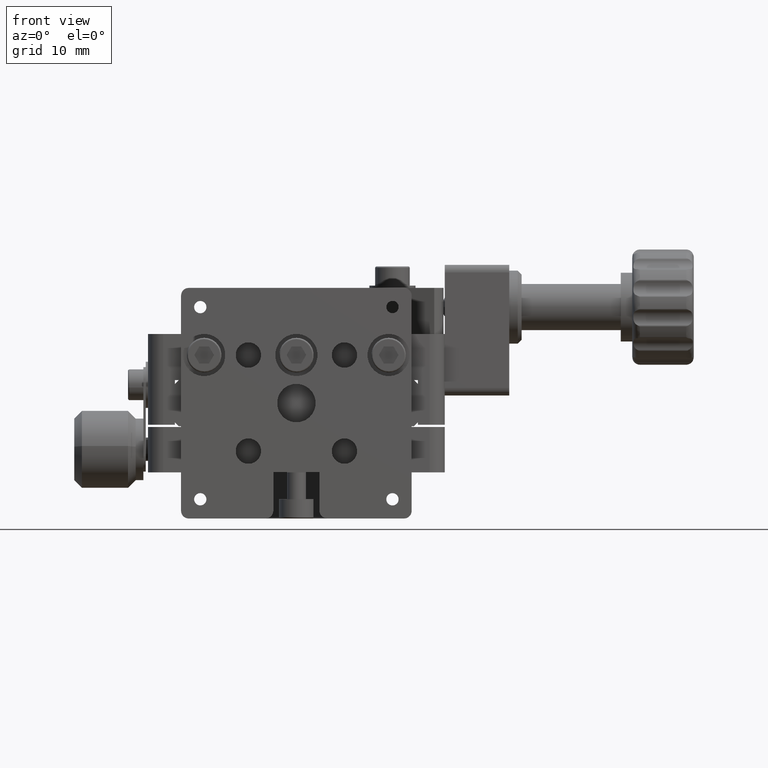
[diagram: clean part render]
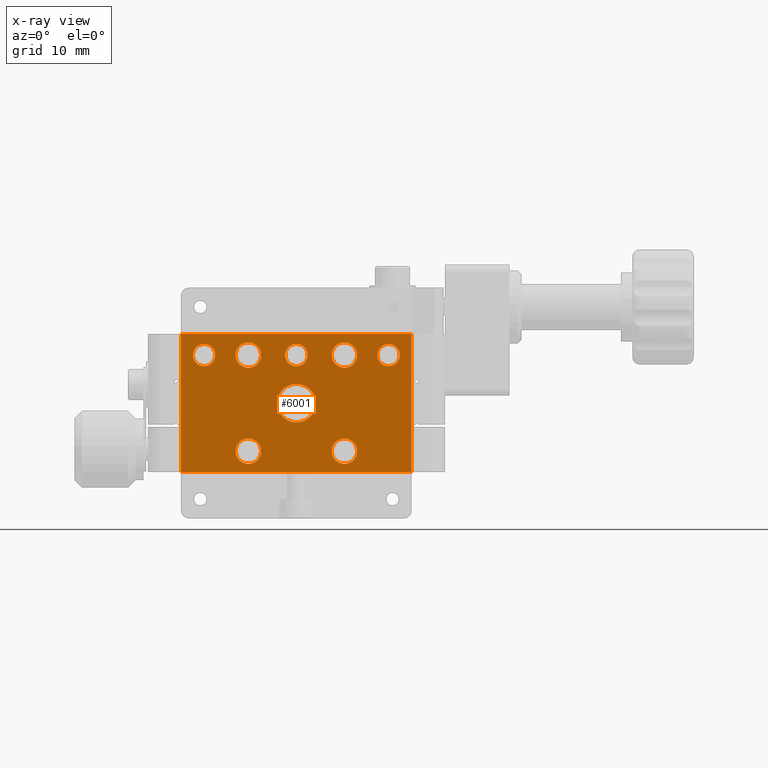
[diagram: x-ray — body ghosted, one internal face saturated and labeled with its STEP entity id]
A machine part, front view, then the same camera in x-ray: the body is ghosted and one INTERNAL B-rep face — a face not visible from any outside direction — is saturated and labeled: STEP entity #6001.
In plain terms, the highlighted planar face has unit normal (0, 1, 0).
Its self-contained STEP definition (entity closure, byte-faithful):
#8 = VERTEX_POINT ( 'NONE', #8278 ) ;
#91 = CARTESIAN_POINT ( 'NONE',  ( 5.719045372601242700, -33.63851180073592000, 36.25000000000000000 ) ) ;
#228 = EDGE_LOOP ( 'NONE', ( #12574, #4617 ) ) ;
#313 = ORIENTED_EDGE ( 'NONE', *, *, #15087, .T. ) ;
#690 = CIRCLE ( 'NONE', #7930, 1.649999999999998600 ) ;
#691 = EDGE_CURVE ( 'NONE', #23499, #11549, #26626, .T. ) ;
#978 = FACE_BOUND ( 'NONE', #11240, .T. ) ;
#1134 = EDGE_CURVE ( 'NONE', #3129, #5193, #690, .T. ) ;
#1385 = CARTESIAN_POINT ( 'NONE',  ( -15.53095462739877100, -33.63851180073592000, 21.00000000000000400 ) ) ;
#2014 = CIRCLE ( 'NONE', #19414, 1.649999999999998600 ) ;
#2187 = CARTESIAN_POINT ( 'NONE',  ( 5.719045372601177000, -33.63851180073592000, 23.74999999999993200 ) ) ;
#2376 = DIRECTION ( 'NONE',  ( 0.0000000000000000000, 0.0000000000000000000, 1.000000000000000000 ) ) ;
#2396 = AXIS2_PLACEMENT_3D ( 'NONE', #28189, #15564, #12890 ) ;
#2599 = CARTESIAN_POINT ( 'NONE',  ( -6.780954627398759100, -33.63851180073592000, 23.74999999999999300 ) ) ;
#2655 = VERTEX_POINT ( 'NONE', #21937 ) ;
#2811 = VERTEX_POINT ( 'NONE', #12798 ) ;
#2849 = AXIS2_PLACEMENT_3D ( 'NONE', #2187, #30439, #27890 ) ;
#3059 = EDGE_CURVE ( 'NONE', #5193, #3129, #19490, .T. ) ;
#3103 = DIRECTION ( 'NONE',  ( 1.000000000000000000, 0.0000000000000000000, 0.0000000000000000000 ) ) ;
#3112 = VECTOR ( 'NONE', #23363, 1000.000000000000000 ) ;
#3129 = VERTEX_POINT ( 'NONE', #7977 ) ;
#3537 = LINE ( 'NONE', #5583, #3112 ) ;
#3635 = DIRECTION ( 'NONE',  ( -0.0000000000000000000, -1.000000000000000000, -0.0000000000000000000 ) ) ;
#3818 = CARTESIAN_POINT ( 'NONE',  ( -12.53095462739875800, -33.63851180073592000, 37.70000000000000300 ) ) ;
#3918 = DIRECTION ( 'NONE',  ( 0.0000000000000000000, 0.0000000000000000000, 1.000000000000000000 ) ) ;
#4617 = ORIENTED_EDGE ( 'NONE', *, *, #9361, .T. ) ;
#4886 = ORIENTED_EDGE ( 'NONE', *, *, #28243, .T. ) ;
#5016 = FACE_OUTER_BOUND ( 'NONE', #6933, .T. ) ;
#5193 = VERTEX_POINT ( 'NONE', #5194 ) ;
#5194 = CARTESIAN_POINT ( 'NONE',  ( 5.719045372601177000, -33.63851180073592000, 25.39999999999993100 ) ) ;
#5399 = EDGE_LOOP ( 'NONE', ( #313, #20872 ) ) ;
#5571 = DIRECTION ( 'NONE',  ( 0.0000000000000000000, 0.0000000000000000000, 1.000000000000000000 ) ) ;
#5583 = CARTESIAN_POINT ( 'NONE',  ( -20.75278946469710200, -33.63851180073592000, 21.00000000000000400 ) ) ;
#5918 = AXIS2_PLACEMENT_3D ( 'NONE', #26073, #8602, #26293 ) ;
#6001 = ADVANCED_FACE ( 'NONE', ( #22493, #29670, #978, #15721, #8970, #32870, #27279, #26888, #5016 ), #19196, .T. ) ;
#6339 = VECTOR ( 'NONE', #24091, 1000.000000000000000 ) ;
#6473 = VERTEX_POINT ( 'NONE', #17386 ) ;
#6834 = CIRCLE ( 'NONE', #12233, 1.450000000000006800 ) ;
#6933 = EDGE_LOOP ( 'NONE', ( #12001, #14478, #4886, #30924, #25555, #31200 ) ) ;
#6989 = CARTESIAN_POINT ( 'NONE',  ( -0.5309546273987580900, -33.63851180073592000, 36.25000000000000000 ) ) ;
#7046 = VERTEX_POINT ( 'NONE', #32489 ) ;
#7109 = VECTOR ( 'NONE', #26150, 1000.000000000000000 ) ;
#7114 = VERTEX_POINT ( 'NONE', #32813 ) ;
#7146 = VERTEX_POINT ( 'NONE', #10327 ) ;
#7175 = AXIS2_PLACEMENT_3D ( 'NONE', #14391, #26453, #14281 ) ;
#7218 = LINE ( 'NONE', #8816, #20721 ) ;
#7644 = EDGE_CURVE ( 'NONE', #17753, #17644, #11357, .T. ) ;
#7930 = AXIS2_PLACEMENT_3D ( 'NONE', #28760, #15941, #13477 ) ;
#7977 = CARTESIAN_POINT ( 'NONE',  ( 5.719045372601177000, -33.63851180073592000, 22.09999999999993400 ) ) ;
#8199 = ORIENTED_EDGE ( 'NONE', *, *, #3059, .T. ) ;
#8278 = CARTESIAN_POINT ( 'NONE',  ( 5.719045372601242700, -33.63851180073592000, 34.60000000000000100 ) ) ;
#8311 = DIRECTION ( 'NONE',  ( 0.0000000000000000000, 0.0000000000000000000, 1.000000000000000000 ) ) ;
#8346 = CARTESIAN_POINT ( 'NONE',  ( -15.53095462739877100, -33.63851180073592000, 45.00000000000000000 ) ) ;
#8602 = DIRECTION ( 'NONE',  ( -0.0000000000000000000, -1.000000000000000000, -0.0000000000000000000 ) ) ;
#8751 = CARTESIAN_POINT ( 'NONE',  ( 11.46904537260124200, -33.63851180073592000, 36.25000000000000000 ) ) ;
#8816 = CARTESIAN_POINT ( 'NONE',  ( -20.75278946469710200, -33.63851180073592000, 21.00000000000000400 ) ) ;
#8871 = CIRCLE ( 'NONE', #15421, 1.450000000000006800 ) ;
#8958 = CIRCLE ( 'NONE', #22034, 2.499999999999992000 ) ;
#8970 = FACE_BOUND ( 'NONE', #10689, .T. ) ;
#9093 = CIRCLE ( 'NONE', #21732, 1.649999999999998600 ) ;
#9111 = DIRECTION ( 'NONE',  ( 0.0000000000000000000, 1.000000000000000000, 0.0000000000000000000 ) ) ;
#9361 = EDGE_CURVE ( 'NONE', #8, #7114, #9093, .T. ) ;
#9443 = AXIS2_PLACEMENT_3D ( 'NONE', #26868, #11570, #11480 ) ;
#9701 = ORIENTED_EDGE ( 'NONE', *, *, #7644, .T. ) ;
#10056 = AXIS2_PLACEMENT_3D ( 'NONE', #12977, #20763, #5571 ) ;
#10101 = EDGE_LOOP ( 'NONE', ( #8199, #30145 ) ) ;
#10149 = CARTESIAN_POINT ( 'NONE',  ( -6.780954627398759100, -33.63851180073592000, 25.39999999999999100 ) ) ;
#10327 = CARTESIAN_POINT ( 'NONE',  ( -0.5309546273987580900, -33.63851180073592000, 32.49999999999998600 ) ) ;
#10680 = DIRECTION ( 'NONE',  ( 0.0000000000000000000, 0.0000000000000000000, 1.000000000000000000 ) ) ;
#10689 = EDGE_LOOP ( 'NONE', ( #26392, #26166 ) ) ;
#10775 = CIRCLE ( 'NONE', #7175, 1.649999999999998600 ) ;
#11006 = LINE ( 'NONE', #21965, #16973 ) ;
#11097 = CARTESIAN_POINT ( 'NONE',  ( -12.53095462739875800, -33.63851180073592000, 36.25000000000000000 ) ) ;
#11240 = EDGE_LOOP ( 'NONE', ( #18365, #30442 ) ) ;
#11357 = CIRCLE ( 'NONE', #15865, 1.450000000000006800 ) ;
#11480 = DIRECTION ( 'NONE',  ( 0.0000000000000000000, 0.0000000000000000000, 1.000000000000000000 ) ) ;
#11549 = VERTEX_POINT ( 'NONE', #25241 ) ;
#11570 = DIRECTION ( 'NONE',  ( -0.0000000000000000000, -1.000000000000000000, -0.0000000000000000000 ) ) ;
#11609 = EDGE_CURVE ( 'NONE', #7114, #8, #23348, .T. ) ;
#11866 = DIRECTION ( 'NONE',  ( -0.0000000000000000000, -1.000000000000000000, -0.0000000000000000000 ) ) ;
#12001 = ORIENTED_EDGE ( 'NONE', *, *, #691, .T. ) ;
#12124 = VERTEX_POINT ( 'NONE', #25438 ) ;
#12233 = AXIS2_PLACEMENT_3D ( 'NONE', #29099, #3635, #28996 ) ;
#12460 = CARTESIAN_POINT ( 'NONE',  ( 11.46904537260124200, -33.63851180073592000, 34.79999999999999000 ) ) ;
#12574 = ORIENTED_EDGE ( 'NONE', *, *, #11609, .T. ) ;
#12798 = CARTESIAN_POINT ( 'NONE',  ( -6.780954627398736900, -33.63851180073592000, 34.60000000000002300 ) ) ;
#12890 = DIRECTION ( 'NONE',  ( 0.0000000000000000000, 0.0000000000000000000, 1.000000000000000000 ) ) ;
#12977 = CARTESIAN_POINT ( 'NONE',  ( 5.719045372601242700, -33.63851180073592000, 36.25000000000000000 ) ) ;
#13254 = VERTEX_POINT ( 'NONE', #28580 ) ;
#13375 = DIRECTION ( 'NONE',  ( -0.0000000000000000000, -1.000000000000000000, -0.0000000000000000000 ) ) ;
#13477 = DIRECTION ( 'NONE',  ( 0.0000000000000000000, 0.0000000000000000000, 1.000000000000000000 ) ) ;
#13689 = VERTEX_POINT ( 'NONE', #31402 ) ;
#13813 = DIRECTION ( 'NONE',  ( -0.0000000000000000000, -1.000000000000000000, -0.0000000000000000000 ) ) ;
#14041 = CARTESIAN_POINT ( 'NONE',  ( 11.46904537260124200, -33.63851180073592000, 37.70000000000000300 ) ) ;
#14044 = DIRECTION ( 'NONE',  ( 0.0000000000000000000, 0.0000000000000000000, 1.000000000000000000 ) ) ;
#14210 = DIRECTION ( 'NONE',  ( -1.000000000000000000, -0.0000000000000000000, -0.0000000000000000000 ) ) ;
#14281 = DIRECTION ( 'NONE',  ( 0.0000000000000000000, 0.0000000000000000000, 1.000000000000000000 ) ) ;
#14391 = CARTESIAN_POINT ( 'NONE',  ( -6.780954627398736900, -33.63851180073592000, 36.25000000000002100 ) ) ;
#14478 = ORIENTED_EDGE ( 'NONE', *, *, #27863, .T. ) ;
#14493 = CIRCLE ( 'NONE', #32501, 1.450000000000006800 ) ;
#14956 = EDGE_CURVE ( 'NONE', #32429, #22318, #2014, .T. ) ;
#15005 = LINE ( 'NONE', #8346, #7109 ) ;
#15087 = EDGE_CURVE ( 'NONE', #7146, #13689, #28263, .T. ) ;
#15352 = EDGE_CURVE ( 'NONE', #7046, #23499, #30662, .T. ) ;
#15421 = AXIS2_PLACEMENT_3D ( 'NONE', #6989, #24329, #14044 ) ;
#15434 = EDGE_CURVE ( 'NONE', #6473, #2811, #20645, .T. ) ;
#15564 = DIRECTION ( 'NONE',  ( -0.0000000000000000000, -1.000000000000000000, -0.0000000000000000000 ) ) ;
#15721 = FACE_BOUND ( 'NONE', #29563, .T. ) ;
#15865 = AXIS2_PLACEMENT_3D ( 'NONE', #8751, #13813, #31663 ) ;
#15893 = DIRECTION ( 'NONE',  ( -0.0000000000000000000, -1.000000000000000000, -0.0000000000000000000 ) ) ;
#15941 = DIRECTION ( 'NONE',  ( -0.0000000000000000000, -1.000000000000000000, -0.0000000000000000000 ) ) ;
#16143 = ORIENTED_EDGE ( 'NONE', *, *, #15434, .T. ) ;
#16318 = CIRCLE ( 'NONE', #5918, 1.450000000000006800 ) ;
#16395 = EDGE_CURVE ( 'NONE', #20291, #7046, #15005, .T. ) ;
#16797 = ORIENTED_EDGE ( 'NONE', *, *, #18703, .T. ) ;
#16973 = VECTOR ( 'NONE', #24539, 1000.000000000000000 ) ;
#17386 = CARTESIAN_POINT ( 'NONE',  ( -6.780954627398736900, -33.63851180073592000, 37.90000000000002000 ) ) ;
#17516 = EDGE_CURVE ( 'NONE', #12124, #2655, #8871, .T. ) ;
#17644 = VERTEX_POINT ( 'NONE', #14041 ) ;
#17753 = VERTEX_POINT ( 'NONE', #12460 ) ;
#18293 = CARTESIAN_POINT ( 'NONE',  ( -20.75278946469710200, -33.63851180073592000, 39.00000000000000000 ) ) ;
#18365 = ORIENTED_EDGE ( 'NONE', *, *, #29207, .T. ) ;
#18606 = AXIS2_PLACEMENT_3D ( 'NONE', #24334, #9111, #29474 ) ;
#18703 = EDGE_CURVE ( 'NONE', #2811, #6473, #10775, .T. ) ;
#18765 = AXIS2_PLACEMENT_3D ( 'NONE', #28666, #13375, #8311 ) ;
#19196 = PLANE ( 'NONE',  #18606 ) ;
#19314 = CARTESIAN_POINT ( 'NONE',  ( -6.780954627398759100, -33.63851180073592000, 22.09999999999999400 ) ) ;
#19366 = CARTESIAN_POINT ( 'NONE',  ( 2.469045372601240900, -33.63851180073592000, 21.00000000000000400 ) ) ;
#19414 = AXIS2_PLACEMENT_3D ( 'NONE', #2599, #22823, #2376 ) ;
#19490 = CIRCLE ( 'NONE', #2849, 1.649999999999998600 ) ;
#19516 = EDGE_CURVE ( 'NONE', #27565, #13254, #16318, .T. ) ;
#19750 = EDGE_CURVE ( 'NONE', #28587, #20291, #7218, .T. ) ;
#19984 = ORIENTED_EDGE ( 'NONE', *, *, #14956, .T. ) ;
#20291 = VERTEX_POINT ( 'NONE', #1385 ) ;
#20602 = VERTEX_POINT ( 'NONE', #19366 ) ;
#20645 = CIRCLE ( 'NONE', #9443, 1.649999999999998600 ) ;
#20721 = VECTOR ( 'NONE', #14210, 1000.000000000000000 ) ;
#20763 = DIRECTION ( 'NONE',  ( -0.0000000000000000000, -1.000000000000000000, -0.0000000000000000000 ) ) ;
#20872 = ORIENTED_EDGE ( 'NONE', *, *, #29979, .T. ) ;
#21292 = EDGE_CURVE ( 'NONE', #2655, #12124, #32997, .T. ) ;
#21732 = AXIS2_PLACEMENT_3D ( 'NONE', #91, #28462, #30921 ) ;
#21759 = DIRECTION ( 'NONE',  ( -0.0000000000000000000, -1.000000000000000000, -0.0000000000000000000 ) ) ;
#21775 = CARTESIAN_POINT ( 'NONE',  ( 14.46904537260122800, -33.63851180073592000, 45.00000000000000000 ) ) ;
#21868 = CARTESIAN_POINT ( 'NONE',  ( -0.5309546273987580900, -33.63851180073592000, 29.99999999999999600 ) ) ;
#21937 = CARTESIAN_POINT ( 'NONE',  ( -0.5309546273987578700, -33.63851180073592000, 37.70000000000000300 ) ) ;
#21942 = ORIENTED_EDGE ( 'NONE', *, *, #24264, .T. ) ;
#21965 = CARTESIAN_POINT ( 'NONE',  ( -20.75278946469710200, -33.63851180073592000, 21.00000000000000400 ) ) ;
#22034 = AXIS2_PLACEMENT_3D ( 'NONE', #21868, #21759, #29549 ) ;
#22318 = VERTEX_POINT ( 'NONE', #19314 ) ;
#22493 = FACE_BOUND ( 'NONE', #29421, .T. ) ;
#22545 = AXIS2_PLACEMENT_3D ( 'NONE', #24340, #11866, #3918 ) ;
#22823 = DIRECTION ( 'NONE',  ( -0.0000000000000000000, -1.000000000000000000, -0.0000000000000000000 ) ) ;
#23348 = CIRCLE ( 'NONE', #10056, 1.649999999999998600 ) ;
#23363 = DIRECTION ( 'NONE',  ( -1.000000000000000000, -0.0000000000000000000, -0.0000000000000000000 ) ) ;
#23459 = VECTOR ( 'NONE', #3103, 1000.000000000000000 ) ;
#23499 = VERTEX_POINT ( 'NONE', #29723 ) ;
#24091 = DIRECTION ( 'NONE',  ( 0.0000000000000000000, 0.0000000000000000000, -1.000000000000000000 ) ) ;
#24264 = EDGE_CURVE ( 'NONE', #22318, #32429, #24394, .T. ) ;
#24329 = DIRECTION ( 'NONE',  ( -0.0000000000000000000, -1.000000000000000000, -0.0000000000000000000 ) ) ;
#24334 = CARTESIAN_POINT ( 'NONE',  ( -0.5309546273987580900, -33.63851180073592000, 29.99999999999999600 ) ) ;
#24340 = CARTESIAN_POINT ( 'NONE',  ( -0.5309546273987580900, -33.63851180073592000, 36.25000000000000000 ) ) ;
#24394 = CIRCLE ( 'NONE', #18765, 1.649999999999998600 ) ;
#24539 = DIRECTION ( 'NONE',  ( -1.000000000000000000, -0.0000000000000000000, -0.0000000000000000000 ) ) ;
#24873 = EDGE_LOOP ( 'NONE', ( #16143, #16797 ) ) ;
#25241 = CARTESIAN_POINT ( 'NONE',  ( 14.46904537260122800, -33.63851180073592000, 21.00000000000000400 ) ) ;
#25317 = EDGE_CURVE ( 'NONE', #17644, #17753, #6834, .T. ) ;
#25438 = CARTESIAN_POINT ( 'NONE',  ( -0.5309546273987580900, -33.63851180073592000, 34.79999999999999000 ) ) ;
#25555 = ORIENTED_EDGE ( 'NONE', *, *, #16395, .T. ) ;
#26073 = CARTESIAN_POINT ( 'NONE',  ( -12.53095462739875800, -33.63851180073592000, 36.25000000000000000 ) ) ;
#26150 = DIRECTION ( 'NONE',  ( -0.0000000000000000000, 0.0000000000000000000, 1.000000000000000000 ) ) ;
#26166 = ORIENTED_EDGE ( 'NONE', *, *, #21292, .T. ) ;
#26293 = DIRECTION ( 'NONE',  ( 0.0000000000000000000, 0.0000000000000000000, 1.000000000000000000 ) ) ;
#26392 = ORIENTED_EDGE ( 'NONE', *, *, #17516, .T. ) ;
#26453 = DIRECTION ( 'NONE',  ( -0.0000000000000000000, -1.000000000000000000, -0.0000000000000000000 ) ) ;
#26626 = LINE ( 'NONE', #21775, #6339 ) ;
#26868 = CARTESIAN_POINT ( 'NONE',  ( -6.780954627398736900, -33.63851180073592000, 36.25000000000002100 ) ) ;
#26888 = FACE_BOUND ( 'NONE', #5399, .T. ) ;
#27279 = FACE_BOUND ( 'NONE', #24873, .T. ) ;
#27565 = VERTEX_POINT ( 'NONE', #3818 ) ;
#27863 = EDGE_CURVE ( 'NONE', #11549, #20602, #3537, .T. ) ;
#27890 = DIRECTION ( 'NONE',  ( 0.0000000000000000000, 0.0000000000000000000, 1.000000000000000000 ) ) ;
#28189 = CARTESIAN_POINT ( 'NONE',  ( -0.5309546273987580900, -33.63851180073592000, 29.99999999999999600 ) ) ;
#28243 = EDGE_CURVE ( 'NONE', #20602, #28587, #11006, .T. ) ;
#28263 = CIRCLE ( 'NONE', #2396, 2.499999999999992000 ) ;
#28462 = DIRECTION ( 'NONE',  ( -0.0000000000000000000, -1.000000000000000000, -0.0000000000000000000 ) ) ;
#28580 = CARTESIAN_POINT ( 'NONE',  ( -12.53095462739875800, -33.63851180073592000, 34.79999999999999000 ) ) ;
#28587 = VERTEX_POINT ( 'NONE', #30664 ) ;
#28666 = CARTESIAN_POINT ( 'NONE',  ( -6.780954627398759100, -33.63851180073592000, 23.74999999999999300 ) ) ;
#28760 = CARTESIAN_POINT ( 'NONE',  ( 5.719045372601177000, -33.63851180073592000, 23.74999999999993200 ) ) ;
#28996 = DIRECTION ( 'NONE',  ( 0.0000000000000000000, 0.0000000000000000000, 1.000000000000000000 ) ) ;
#29099 = CARTESIAN_POINT ( 'NONE',  ( 11.46904537260124200, -33.63851180073592000, 36.25000000000000000 ) ) ;
#29207 = EDGE_CURVE ( 'NONE', #13254, #27565, #14493, .T. ) ;
#29421 = EDGE_LOOP ( 'NONE', ( #19984, #21942 ) ) ;
#29474 = DIRECTION ( 'NONE',  ( 0.0000000000000000000, -0.0000000000000000000, 1.000000000000000000 ) ) ;
#29549 = DIRECTION ( 'NONE',  ( 0.0000000000000000000, 0.0000000000000000000, 1.000000000000000000 ) ) ;
#29563 = EDGE_LOOP ( 'NONE', ( #9701, #32262 ) ) ;
#29670 = FACE_BOUND ( 'NONE', #228, .T. ) ;
#29723 = CARTESIAN_POINT ( 'NONE',  ( 14.46904537260122800, -33.63851180073592000, 39.00000000000000000 ) ) ;
#29979 = EDGE_CURVE ( 'NONE', #13689, #7146, #8958, .T. ) ;
#30145 = ORIENTED_EDGE ( 'NONE', *, *, #1134, .T. ) ;
#30439 = DIRECTION ( 'NONE',  ( -0.0000000000000000000, -1.000000000000000000, -0.0000000000000000000 ) ) ;
#30442 = ORIENTED_EDGE ( 'NONE', *, *, #19516, .T. ) ;
#30662 = LINE ( 'NONE', #18293, #23459 ) ;
#30664 = CARTESIAN_POINT ( 'NONE',  ( -3.530954627398758200, -33.63851180073592000, 21.00000000000000400 ) ) ;
#30921 = DIRECTION ( 'NONE',  ( 0.0000000000000000000, 0.0000000000000000000, 1.000000000000000000 ) ) ;
#30924 = ORIENTED_EDGE ( 'NONE', *, *, #19750, .T. ) ;
#31200 = ORIENTED_EDGE ( 'NONE', *, *, #15352, .T. ) ;
#31402 = CARTESIAN_POINT ( 'NONE',  ( -0.5309546273987577600, -33.63851180073592000, 27.50000000000000400 ) ) ;
#31663 = DIRECTION ( 'NONE',  ( 0.0000000000000000000, 0.0000000000000000000, 1.000000000000000000 ) ) ;
#32262 = ORIENTED_EDGE ( 'NONE', *, *, #25317, .T. ) ;
#32429 = VERTEX_POINT ( 'NONE', #10149 ) ;
#32489 = CARTESIAN_POINT ( 'NONE',  ( -15.53095462739877100, -33.63851180073592000, 39.00000000000000000 ) ) ;
#32501 = AXIS2_PLACEMENT_3D ( 'NONE', #11097, #15893, #10680 ) ;
#32813 = CARTESIAN_POINT ( 'NONE',  ( 5.719045372601242700, -33.63851180073592000, 37.89999999999999900 ) ) ;
#32870 = FACE_BOUND ( 'NONE', #10101, .T. ) ;
#32997 = CIRCLE ( 'NONE', #22545, 1.450000000000006800 ) ;